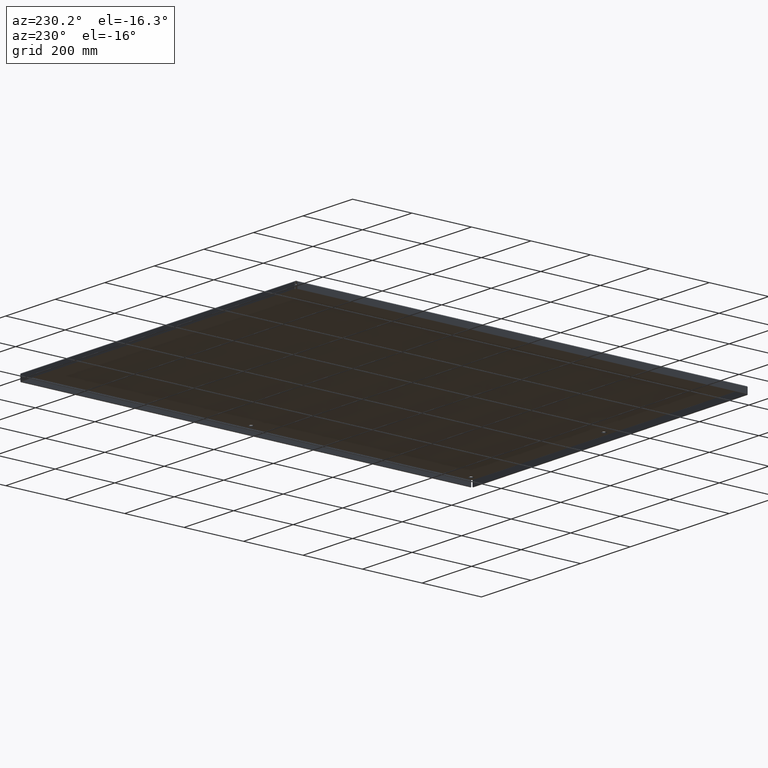
[diagram: clean part render]
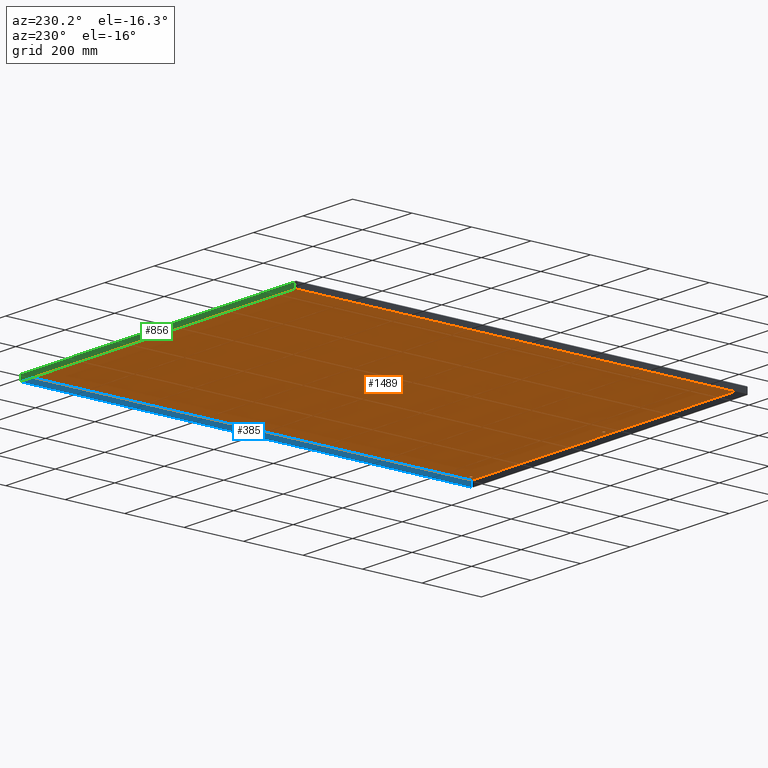
[diagram: same view with three faces highlighted in distinct colors, each labeled with its STEP entity id]
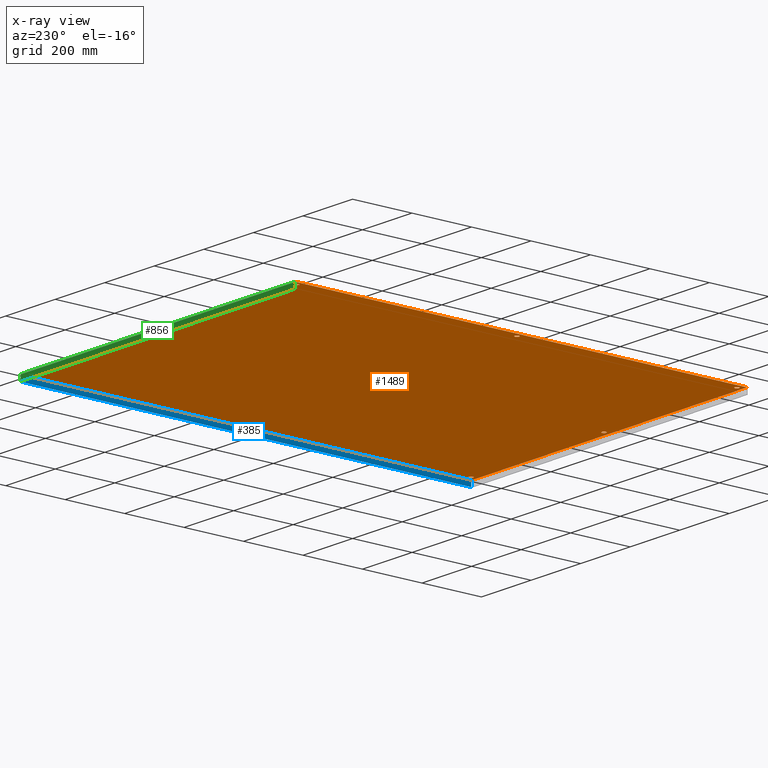
[diagram: x-ray of the same camera — body ghosted, the three highlighted faces saturated]
A machine part, auxiliary view with three faces highlighted in distinct colors.
The next image is the same camera in x-ray (body ghosted, the three faces saturated) — at least one of them is partly hidden behind the body in this view.
Their STEP definitions:

[orange] entity #1489 — the highlighted planar face has unit normal (0, 0, 1).
#90=CARTESIAN_POINT('',(22.28150000000004,0.874999999999976,0.0));
#91=VERTEX_POINT('',#90);
#92=CARTESIAN_POINT('',(22.000000000000043,0.874999999999976,0.0));
#93=DIRECTION('',(0.0,0.0,1.0));
#94=DIRECTION('',(1.0,0.0,0.0));
#95=AXIS2_PLACEMENT_3D('',#92,#93,#94);
#96=CIRCLE('',#95,0.2815);
#97=EDGE_CURVE('',#91,#91,#96,.T.);
#118=CARTESIAN_POINT('',(22.281499999999998,59.124999999999993,0.0));
#119=VERTEX_POINT('',#118);
#120=CARTESIAN_POINT('',(22.0,59.124999999999993,0.0));
#121=DIRECTION('',(0.0,0.0,1.0));
#122=DIRECTION('',(1.0,0.0,0.0));
#123=AXIS2_PLACEMENT_3D('',#120,#121,#122);
#124=CIRCLE('',#123,0.2815);
#125=EDGE_CURVE('',#119,#119,#124,.T.);
#146=CARTESIAN_POINT('',(43.406500000000001,30.000000000000004,0.0));
#147=VERTEX_POINT('',#146);
#148=CARTESIAN_POINT('',(43.125,30.000000000000004,0.0));
#149=DIRECTION('',(0.0,0.0,1.0));
#150=DIRECTION('',(1.0,0.0,0.0));
#151=AXIS2_PLACEMENT_3D('',#148,#149,#150);
#152=CIRCLE('',#151,0.2815);
#153=EDGE_CURVE('',#147,#147,#152,.T.);
#174=CARTESIAN_POINT('',(1.156499999999991,29.999999999999996,0.0));
#175=VERTEX_POINT('',#174);
#176=CARTESIAN_POINT('',(0.874999999999991,29.999999999999996,0.0));
#177=DIRECTION('',(0.0,0.0,1.0));
#178=DIRECTION('',(1.0,0.0,0.0));
#179=AXIS2_PLACEMENT_3D('',#176,#177,#178);
#180=CIRCLE('',#179,0.2815);
#181=EDGE_CURVE('',#175,#175,#180,.T.);
#202=CARTESIAN_POINT('',(43.406499999999994,59.124999999999986,0.0));
#203=VERTEX_POINT('',#202);
#204=CARTESIAN_POINT('',(43.124999999999986,59.124999999999986,0.0));
#205=DIRECTION('',(0.0,0.0,1.0));
#206=DIRECTION('',(1.0,0.0,0.0));
#207=AXIS2_PLACEMENT_3D('',#204,#205,#206);
#208=CIRCLE('',#207,0.2815);
#209=EDGE_CURVE('',#203,#203,#208,.T.);
#230=CARTESIAN_POINT('',(1.156499999999982,59.124999999999993,0.0));
#231=VERTEX_POINT('',#230);
#232=CARTESIAN_POINT('',(0.874999999999982,59.124999999999993,0.0));
#233=DIRECTION('',(0.0,0.0,1.0));
#234=DIRECTION('',(1.0,0.0,0.0));
#235=AXIS2_PLACEMENT_3D('',#232,#233,#234);
#236=CIRCLE('',#235,0.2815);
#237=EDGE_CURVE('',#231,#231,#236,.T.);
#258=CARTESIAN_POINT('',(1.156499999999976,0.875,0.0));
#259=VERTEX_POINT('',#258);
#260=CARTESIAN_POINT('',(0.874999999999976,0.875,0.0));
#261=DIRECTION('',(0.0,0.0,1.0));
#262=DIRECTION('',(1.0,0.0,0.0));
#263=AXIS2_PLACEMENT_3D('',#260,#261,#262);
#264=CIRCLE('',#263,0.2815);
#265=EDGE_CURVE('',#259,#259,#264,.T.);
#286=CARTESIAN_POINT('',(43.406499999999994,0.875,0.0));
#287=VERTEX_POINT('',#286);
#288=CARTESIAN_POINT('',(43.124999999999986,0.875,0.0));
#289=DIRECTION('',(0.0,0.0,1.0));
#290=DIRECTION('',(1.0,0.0,0.0));
#291=AXIS2_PLACEMENT_3D('',#288,#289,#290);
#292=CIRCLE('',#291,0.2815);
#293=EDGE_CURVE('',#287,#287,#292,.T.);
#445=CARTESIAN_POINT('',(43.859400000000008,0.1406,0.0));
#446=VERTEX_POINT('',#445);
#495=CARTESIAN_POINT('',(43.859400000000001,59.859400000000008,0.0));
#496=VERTEX_POINT('',#495);
#584=CARTESIAN_POINT('',(43.859400000000001,59.859400000000008,0.0));
#585=DIRECTION('',(0.0,-1.0,0.0));
#586=VECTOR('',#585,59.718800000000009);
#587=LINE('',#584,#586);
#588=EDGE_CURVE('',#496,#446,#587,.T.);
#775=CARTESIAN_POINT('',(0.140599999999982,59.859399999999994,0.0));
#776=VERTEX_POINT('',#775);
#864=CARTESIAN_POINT('',(0.140599999999978,59.859400000000008,0.0));
#865=DIRECTION('',(1.0,0.0,0.0));
#866=VECTOR('',#865,43.718800000000016);
#867=LINE('',#864,#866);
#868=EDGE_CURVE('',#776,#496,#867,.T.);
#1055=CARTESIAN_POINT('',(0.140599999999997,0.1406,0.0));
#1056=VERTEX_POINT('',#1055);
#1144=CARTESIAN_POINT('',(0.140600000000001,0.140599999999999,0.0));
#1145=DIRECTION('',(0.0,1.0,0.0));
#1146=VECTOR('',#1145,59.718799999999995);
#1147=LINE('',#1144,#1146);
#1148=EDGE_CURVE('',#1056,#776,#1147,.T.);
#1408=CARTESIAN_POINT('',(43.859400000000008,0.1406,0.0));
#1409=DIRECTION('',(-1.0,0.0,0.0));
#1410=VECTOR('',#1409,43.718800000000016);
#1411=LINE('',#1408,#1410);
#1412=EDGE_CURVE('',#446,#1056,#1411,.T.);
#1454=CARTESIAN_POINT('',(21.999999999999996,30.000000000000007,0.0));
#1455=DIRECTION('',(0.0,0.0,1.0));
#1456=DIRECTION('',(1.0,0.0,0.0));
#1457=AXIS2_PLACEMENT_3D('',#1454,#1455,#1456);
#1458=PLANE('',#1457);
#1459=ORIENTED_EDGE('',*,*,#588,.T.);
#1460=ORIENTED_EDGE('',*,*,#1412,.T.);
#1461=ORIENTED_EDGE('',*,*,#1148,.T.);
#1462=ORIENTED_EDGE('',*,*,#868,.T.);
#1463=EDGE_LOOP('',(#1459,#1460,#1461,#1462));
#1464=FACE_OUTER_BOUND('',#1463,.T.);
#1465=ORIENTED_EDGE('',*,*,#97,.T.);
#1466=EDGE_LOOP('',(#1465));
#1467=FACE_BOUND('',#1466,.T.);
#1468=ORIENTED_EDGE('',*,*,#125,.T.);
#1469=EDGE_LOOP('',(#1468));
#1470=FACE_BOUND('',#1469,.T.);
#1471=ORIENTED_EDGE('',*,*,#153,.T.);
#1472=EDGE_LOOP('',(#1471));
#1473=FACE_BOUND('',#1472,.T.);
#1474=ORIENTED_EDGE('',*,*,#181,.T.);
#1475=EDGE_LOOP('',(#1474));
#1476=FACE_BOUND('',#1475,.T.);
#1477=ORIENTED_EDGE('',*,*,#209,.T.);
#1478=EDGE_LOOP('',(#1477));
#1479=FACE_BOUND('',#1478,.T.);
#1480=ORIENTED_EDGE('',*,*,#237,.T.);
#1481=EDGE_LOOP('',(#1480));
#1482=FACE_BOUND('',#1481,.T.);
#1483=ORIENTED_EDGE('',*,*,#265,.T.);
#1484=EDGE_LOOP('',(#1483));
#1485=FACE_BOUND('',#1484,.T.);
#1486=ORIENTED_EDGE('',*,*,#293,.T.);
#1487=EDGE_LOOP('',(#1486));
#1488=FACE_BOUND('',#1487,.T.);
#1489=ADVANCED_FACE('',(#1464,#1467,#1470,#1473,#1476,#1479,#1482,#1485,#1488),#1458,.F.);

[blue] entity #385 — the highlighted planar face has unit normal (1, 0, 0).
#346=CARTESIAN_POINT('',(43.875000000000021,29.999999999999996,-0.338477516194013));
#347=DIRECTION('',(1.0,0.0,0.0));
#348=DIRECTION('',(0.0,0.0,-1.0));
#349=AXIS2_PLACEMENT_3D('',#346,#347,#348);
#350=PLANE('',#349);
#351=CARTESIAN_POINT('',(43.875000000000021,0.213388347648325,-0.01559999999999));
#352=VERTEX_POINT('',#351);
#353=CARTESIAN_POINT('',(43.874999999999986,59.786611652351674,-0.015599999999973));
#354=VERTEX_POINT('',#353);
#355=CARTESIAN_POINT('',(43.875000000000014,0.213388347648326,-0.015599999999996));
#356=DIRECTION('',(0.0,1.0,0.0));
#357=VECTOR('',#356,59.573223304703347);
#358=LINE('',#355,#357);
#359=EDGE_CURVE('',#352,#354,#358,.T.);
#360=ORIENTED_EDGE('',*,*,#359,.T.);
#361=CARTESIAN_POINT('',(43.875000000000028,59.786611652351674,-0.749999999999972));
#362=VERTEX_POINT('',#361);
#363=CARTESIAN_POINT('',(43.874999999999986,59.786611652351674,-0.015599999999973));
#364=DIRECTION('',(0.0,0.0,-1.0));
#365=VECTOR('',#364,0.734399999999999);
#366=LINE('',#363,#365);
#367=EDGE_CURVE('',#354,#362,#366,.T.);
#368=ORIENTED_EDGE('',*,*,#367,.T.);
#369=CARTESIAN_POINT('',(43.875000000000064,0.213388347648329,-0.749999999999995));
#370=VERTEX_POINT('',#369);
#371=CARTESIAN_POINT('',(43.875000000000028,59.786611652351674,-0.749999999999972));
#372=DIRECTION('',(0.0,-1.0,0.0));
#373=VECTOR('',#372,59.57322330470334);
#374=LINE('',#371,#373);
#375=EDGE_CURVE('',#362,#370,#374,.T.);
#376=ORIENTED_EDGE('',*,*,#375,.T.);
#377=CARTESIAN_POINT('',(43.875000000000014,0.213388347648329,-0.015599999999996));
#378=DIRECTION('',(0.0,0.0,-1.0));
#379=VECTOR('',#378,0.734399999999999);
#380=LINE('',#377,#379);
#381=EDGE_CURVE('',#352,#370,#380,.T.);
#382=ORIENTED_EDGE('',*,*,#381,.F.);
#383=EDGE_LOOP('',(#360,#368,#376,#382));
#384=FACE_OUTER_BOUND('',#383,.T.);
#385=ADVANCED_FACE('',(#384),#350,.F.);

[green] entity #856 — the highlighted planar face has unit normal (-0, 1, -0).
#599=CARTESIAN_POINT('',(0.213388347648303,59.999999999999993,-0.015600000000024));
#600=VERTEX_POINT('',#599);
#601=CARTESIAN_POINT('',(43.786611652351681,59.999999999999993,-0.015600000000024));
#602=VERTEX_POINT('',#601);
#603=CARTESIAN_POINT('',(0.213388347648305,59.999999999999993,-0.015600000000024));
#604=DIRECTION('',(1.0,0.0,0.0));
#605=VECTOR('',#604,43.573223304703376);
#606=LINE('',#603,#605);
#607=EDGE_CURVE('',#600,#602,#606,.T.);
#685=CARTESIAN_POINT('',(43.786611652351681,59.999999999999879,-0.750000000000023));
#686=VERTEX_POINT('',#685);
#687=CARTESIAN_POINT('',(43.786611652351681,59.999999999999872,-0.750000000000023));
#688=DIRECTION('',(0.0,1.644775E-013,1.0));
#689=VECTOR('',#688,0.734399999999999);
#690=LINE('',#687,#689);
#691=EDGE_CURVE('',#686,#602,#690,.T.);
#809=CARTESIAN_POINT('',(0.213388347648303,59.999999999999879,-0.750000000000023));
#810=VERTEX_POINT('',#809);
#811=CARTESIAN_POINT('',(0.213388347648303,59.999999999999993,-0.015600000000024));
#812=DIRECTION('',(0.0,-1.644775E-013,-1.0));
#813=VECTOR('',#812,0.734399999999999);
#814=LINE('',#811,#813);
#815=EDGE_CURVE('',#600,#810,#814,.T.);
#833=CARTESIAN_POINT('',(0.213388347648303,59.999999999999879,-0.750000000000023));
#834=DIRECTION('',(1.0,0.0,0.0));
#835=VECTOR('',#834,43.573223304703376);
#836=LINE('',#833,#835);
#837=EDGE_CURVE('',#810,#686,#836,.T.);
#845=CARTESIAN_POINT('',(21.999999999999989,59.99999999999995,-0.338242214570147));
#846=DIRECTION('',(-1.318482E-018,1.0,-1.656616E-013));
#847=DIRECTION('',(1.0,0.0,0.0));
#848=AXIS2_PLACEMENT_3D('',#845,#846,#847);
#849=PLANE('',#848);
#850=ORIENTED_EDGE('',*,*,#607,.T.);
#851=ORIENTED_EDGE('',*,*,#691,.F.);
#852=ORIENTED_EDGE('',*,*,#837,.F.);
#853=ORIENTED_EDGE('',*,*,#815,.F.);
#854=EDGE_LOOP('',(#850,#851,#852,#853));
#855=FACE_OUTER_BOUND('',#854,.T.);
#856=ADVANCED_FACE('',(#855),#849,.T.);